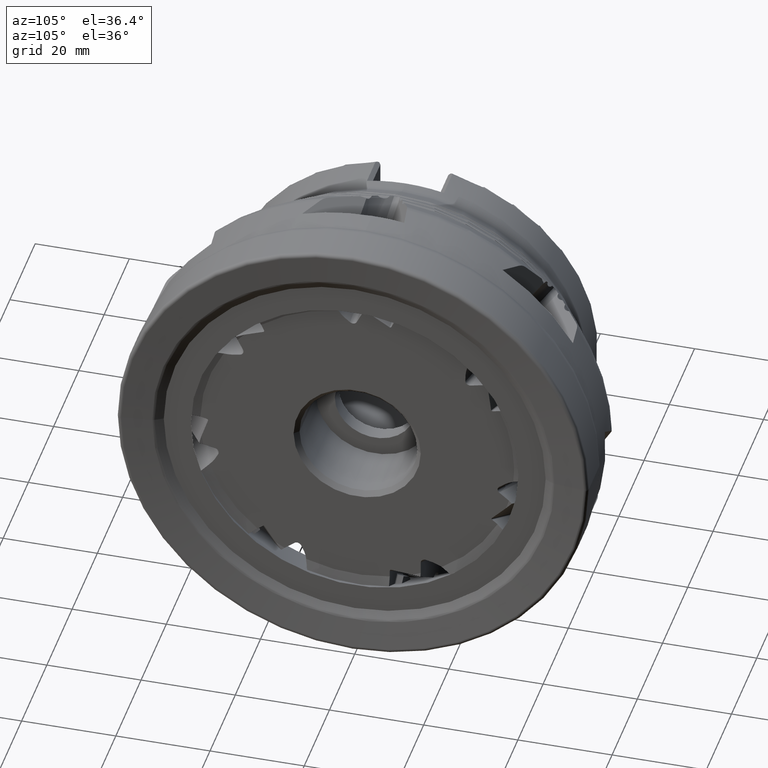
[diagram: clean part render]
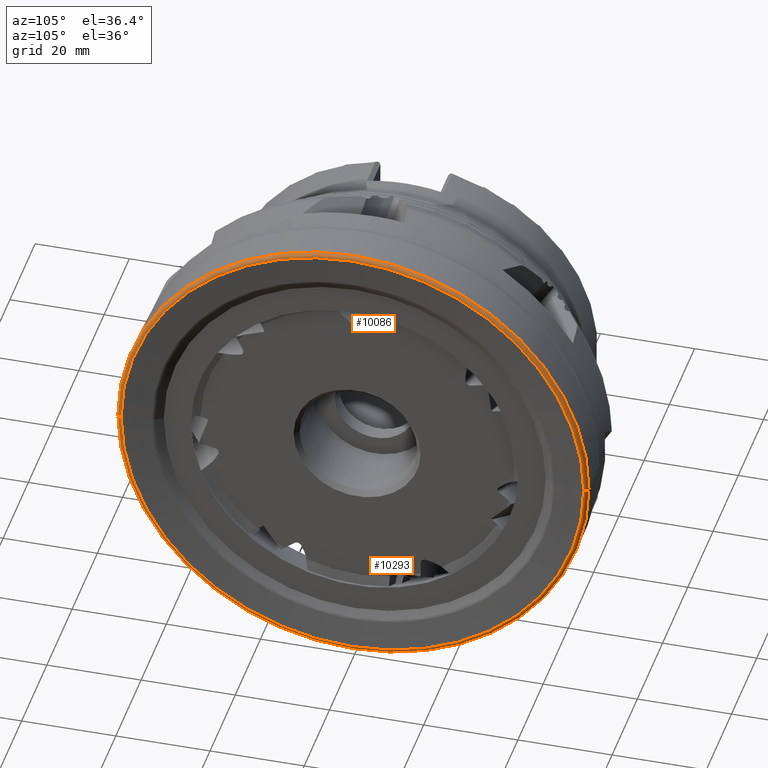
[diagram: same view with one multi-face feature highlighted, each face labeled with its STEP entity id]
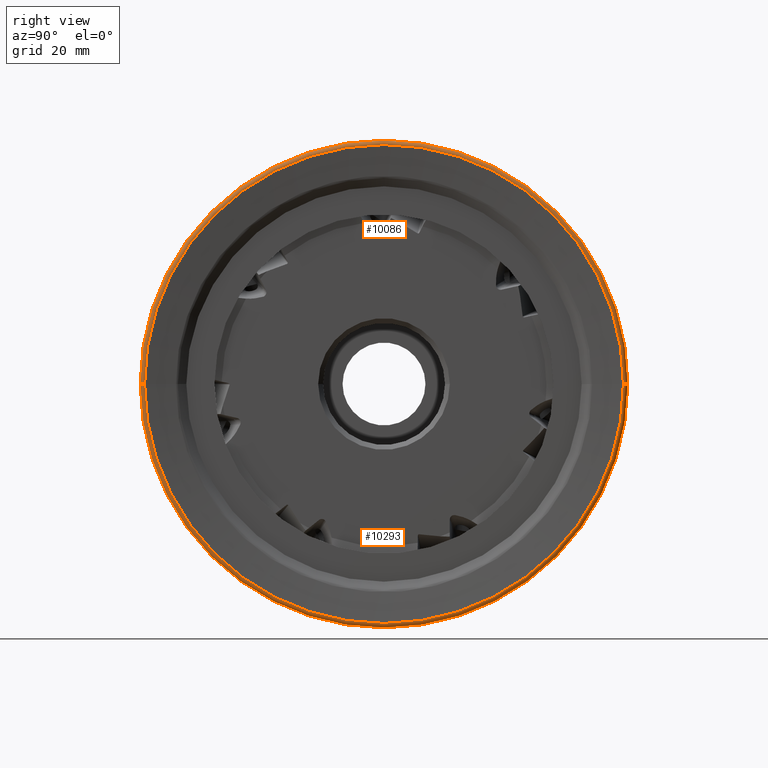
[diagram: same view with one multi-face feature highlighted, each face labeled with its STEP entity id]
A machine part, auxiliary view. The highlighted faces form ONE feature: a constant-radius fillet chain: 2 tangent blend faces with common blend radius 0.8044 mm. The faces share edges in the B-rep.
A second angle (right view) of the same feature is appended — it is thin or edge-on in the first view.
Their STEP definitions:
[1] entity #10086 (Torus):
#810 = AXIS2_PLACEMENT_3D ( 'NONE', #2030, #2035, #2036 ) ;
#812 = AXIS2_PLACEMENT_3D ( 'NONE', #2051, #2056, #2057 ) ;
#813 = AXIS2_PLACEMENT_3D ( 'NONE', #2037, #2039, #2040 ) ;
#1158 = CIRCLE ( 'NONE', #810, 49.10598547636004000 ) ;
#1160 = CIRCLE ( 'NONE', #813, 0.8044355603517711100 ) ;
#1165 = CIRCLE ( 'NONE', #812, 0.8044355603517719900 ) ;
#2030 = CARTESIAN_POINT ( 'NONE',  ( 1.744996850859254200, -4.971258094891114100E-016, 0.0000000000000000000 ) ) ;
#2035 = DIRECTION ( 'NONE',  ( 1.000000000000000000, 1.224646799147350200E-016, -0.0000000000000000000 ) ) ;
#2036 = DIRECTION ( 'NONE',  ( -1.236413872366272400E-016, 1.000000000000000000, 0.0000000000000000000 ) ) ;
#2037 = CARTESIAN_POINT ( 'NONE',  ( 0.9455644396482286700, -49.19556443964823000, 6.024719052326256100E-015 ) ) ;
#2039 = DIRECTION ( 'NONE',  ( -1.499759782661854000E-032, 1.224646799147353200E-016, 1.000000000000000000 ) ) ;
#2040 = DIRECTION ( 'NONE',  ( 0.0000000000000000000, -1.000000000000000000, 1.224646799147349800E-016 ) ) ;
#2051 = CARTESIAN_POINT ( 'NONE',  ( 0.9455644396482165700, 49.19556443964823000, 0.0000000000000000000 ) ) ;
#2056 = DIRECTION ( 'NONE',  ( -0.0000000000000000000, 0.0000000000000000000, -1.000000000000000000 ) ) ;
#2057 = DIRECTION ( 'NONE',  ( -1.000000000000000000, 0.0000000000000000000, 0.0000000000000000000 ) ) ;
#4131 = EDGE_CURVE ( 'NONE', #9643, #9661, #14198, .T. ) ;
#9101 = EDGE_LOOP ( 'NONE', ( #9498, #9517, #9490, #9515 ) ) ;
#9490 = ORIENTED_EDGE ( 'NONE', *, *, #10436, .F. ) ;
#9498 = ORIENTED_EDGE ( 'NONE', *, *, #4131, .T. ) ;
#9515 = ORIENTED_EDGE ( 'NONE', *, *, #10443, .F. ) ;
#9517 = ORIENTED_EDGE ( 'NONE', *, *, #10437, .T. ) ;
#9631 = VERTEX_POINT ( 'NONE', #15611 ) ;
#9643 = VERTEX_POINT ( 'NONE', #15623 ) ;
#9651 = VERTEX_POINT ( 'NONE', #15631 ) ;
#9661 = VERTEX_POINT ( 'NONE', #15641 ) ;
#10086 = ADVANCED_FACE ( 'NONE', ( #14637 ), #14644, .T. ) ;
#10436 = EDGE_CURVE ( 'NONE', #9651, #9631, #1158, .T. ) ;
#10437 = EDGE_CURVE ( 'NONE', #9661, #9631, #1160, .T. ) ;
#10443 = EDGE_CURVE ( 'NONE', #9643, #9651, #1165, .T. ) ;
#12651 = CARTESIAN_POINT ( 'NONE',  ( 0.9455644396482226800, -5.950280438415352600E-016, 0.0000000000000000000 ) ) ;
#12663 = DIRECTION ( 'NONE',  ( 1.000000000000000000, 1.224646799147350200E-016, -0.0000000000000000000 ) ) ;
#12664 = DIRECTION ( 'NONE',  ( -1.214306433183765000E-016, 1.000000000000000000, 0.0000000000000000000 ) ) ;
#14198 = CIRCLE ( 'NONE', #15013, 50.00000000000000000 ) ;
#14637 = FACE_OUTER_BOUND ( 'NONE', #9101, .T. ) ;
#14644 = TOROIDAL_SURFACE ( 'NONE', #16373, 49.19556443964823000, 0.8044355603517719900 ) ;
#15013 = AXIS2_PLACEMENT_3D ( 'NONE', #12651, #12663, #12664 ) ;
#15611 = CARTESIAN_POINT ( 'NONE',  ( 1.744996850859260200, -49.10598547636004000, 6.013748793260074000E-015 ) ) ;
#15623 = CARTESIAN_POINT ( 'NONE',  ( 0.9455644396482165700, 50.00000000000000000, 0.0000000000000000000 ) ) ;
#15631 = CARTESIAN_POINT ( 'NONE',  ( 1.744996850859247900, 49.10598547636004000, 0.0000000000000000000 ) ) ;
#15641 = CARTESIAN_POINT ( 'NONE',  ( 0.9455644396482286700, -50.00000000000000000, 6.123233995736766100E-015 ) ) ;
#16373 = AXIS2_PLACEMENT_3D ( 'NONE', #16965, #16951, #16967 ) ;
#16951 = DIRECTION ( 'NONE',  ( 1.000000000000000000, 1.224646799147350200E-016, -0.0000000000000000000 ) ) ;
#16965 = CARTESIAN_POINT ( 'NONE',  ( 0.9455644396482226800, 0.0000000000000000000, 0.0000000000000000000 ) ) ;
#16967 = DIRECTION ( 'NONE',  ( -1.224646799147350200E-016, 1.000000000000000000, 0.0000000000000000000 ) ) ;
[2] entity #10293 (Torus):
#601 = DIRECTION ( 'NONE',  ( 1.000000000000000000, 1.224646799147350200E-016, -0.0000000000000000000 ) ) ;
#602 = CARTESIAN_POINT ( 'NONE',  ( 0.9455644396482226800, 0.0000000000000000000, 0.0000000000000000000 ) ) ;
#604 = DIRECTION ( 'NONE',  ( -1.224646799147350200E-016, 1.000000000000000000, 0.0000000000000000000 ) ) ;
#763 = AXIS2_PLACEMENT_3D ( 'NONE', #602, #601, #604 ) ;
#809 = AXIS2_PLACEMENT_3D ( 'NONE', #2015, #2022, #2023 ) ;
#812 = AXIS2_PLACEMENT_3D ( 'NONE', #2051, #2056, #2057 ) ;
#813 = AXIS2_PLACEMENT_3D ( 'NONE', #2037, #2039, #2040 ) ;
#817 = AXIS2_PLACEMENT_3D ( 'NONE', #2049, #2058, #2059 ) ;
#1023 = FACE_OUTER_BOUND ( 'NONE', #12321, .T. ) ;
#1032 = TOROIDAL_SURFACE ( 'NONE', #763, 49.19556443964823000, 0.8044355603517719900 ) ;
#1154 = CIRCLE ( 'NONE', #809, 50.00000000000000000 ) ;
#1160 = CIRCLE ( 'NONE', #813, 0.8044355603517711100 ) ;
#1165 = CIRCLE ( 'NONE', #812, 0.8044355603517719900 ) ;
#1166 = CIRCLE ( 'NONE', #817, 49.10598547636004000 ) ;
#2015 = CARTESIAN_POINT ( 'NONE',  ( 0.9455644396482226800, -5.950280438415352600E-016, 0.0000000000000000000 ) ) ;
#2022 = DIRECTION ( 'NONE',  ( 1.000000000000000000, 1.224646799147350200E-016, -0.0000000000000000000 ) ) ;
#2023 = DIRECTION ( 'NONE',  ( -1.214306433183765000E-016, 1.000000000000000000, 0.0000000000000000000 ) ) ;
#2037 = CARTESIAN_POINT ( 'NONE',  ( 0.9455644396482286700, -49.19556443964823000, 6.024719052326256100E-015 ) ) ;
#2039 = DIRECTION ( 'NONE',  ( -1.499759782661854000E-032, 1.224646799147353200E-016, 1.000000000000000000 ) ) ;
#2040 = DIRECTION ( 'NONE',  ( 0.0000000000000000000, -1.000000000000000000, 1.224646799147349800E-016 ) ) ;
#2049 = CARTESIAN_POINT ( 'NONE',  ( 1.744996850859254200, -4.971258094891114100E-016, 0.0000000000000000000 ) ) ;
#2051 = CARTESIAN_POINT ( 'NONE',  ( 0.9455644396482165700, 49.19556443964823000, 0.0000000000000000000 ) ) ;
#2056 = DIRECTION ( 'NONE',  ( -0.0000000000000000000, 0.0000000000000000000, -1.000000000000000000 ) ) ;
#2057 = DIRECTION ( 'NONE',  ( -1.000000000000000000, 0.0000000000000000000, 0.0000000000000000000 ) ) ;
#2058 = DIRECTION ( 'NONE',  ( 1.000000000000000000, 1.224646799147350200E-016, -0.0000000000000000000 ) ) ;
#2059 = DIRECTION ( 'NONE',  ( -1.236413872366272400E-016, 1.000000000000000000, 0.0000000000000000000 ) ) ;
#9631 = VERTEX_POINT ( 'NONE', #15611 ) ;
#9643 = VERTEX_POINT ( 'NONE', #15623 ) ;
#9651 = VERTEX_POINT ( 'NONE', #15631 ) ;
#9661 = VERTEX_POINT ( 'NONE', #15641 ) ;
#10293 = ADVANCED_FACE ( 'NONE', ( #1023 ), #1032, .T. ) ;
#10432 = EDGE_CURVE ( 'NONE', #9661, #9643, #1154, .T. ) ;
#10437 = EDGE_CURVE ( 'NONE', #9661, #9631, #1160, .T. ) ;
#10443 = EDGE_CURVE ( 'NONE', #9643, #9651, #1165, .T. ) ;
#10444 = EDGE_CURVE ( 'NONE', #9631, #9651, #1166, .T. ) ;
#12321 = EDGE_LOOP ( 'NONE', ( #14013, #14014, #14015, #14016 ) ) ;
#14013 = ORIENTED_EDGE ( 'NONE', *, *, #10437, .F. ) ;
#14014 = ORIENTED_EDGE ( 'NONE', *, *, #10432, .T. ) ;
#14015 = ORIENTED_EDGE ( 'NONE', *, *, #10443, .T. ) ;
#14016 = ORIENTED_EDGE ( 'NONE', *, *, #10444, .F. ) ;
#15611 = CARTESIAN_POINT ( 'NONE',  ( 1.744996850859260200, -49.10598547636004000, 6.013748793260074000E-015 ) ) ;
#15623 = CARTESIAN_POINT ( 'NONE',  ( 0.9455644396482165700, 50.00000000000000000, 0.0000000000000000000 ) ) ;
#15631 = CARTESIAN_POINT ( 'NONE',  ( 1.744996850859247900, 49.10598547636004000, 0.0000000000000000000 ) ) ;
#15641 = CARTESIAN_POINT ( 'NONE',  ( 0.9455644396482286700, -50.00000000000000000, 6.123233995736766100E-015 ) ) ;